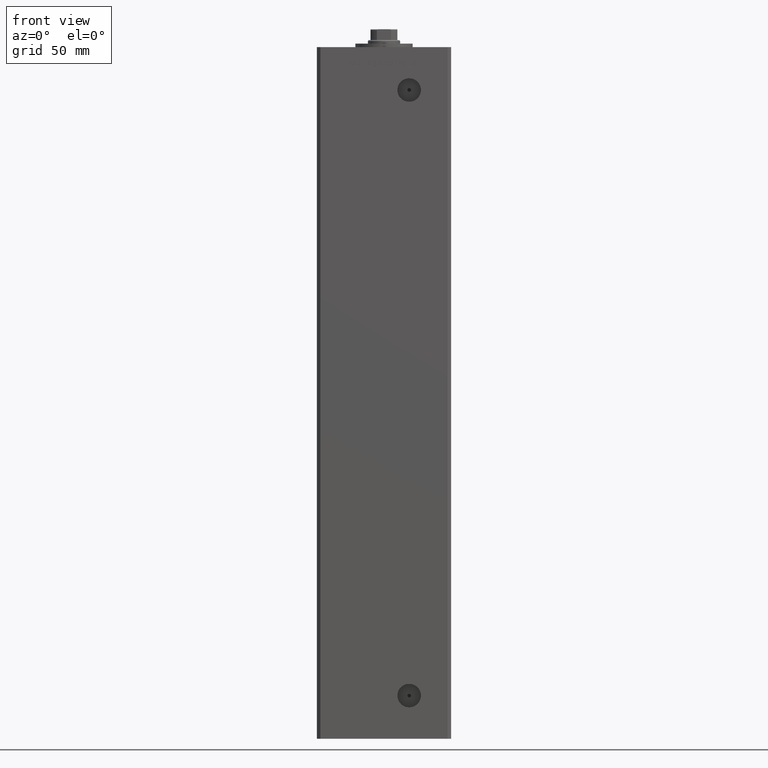
[diagram: clean part render]
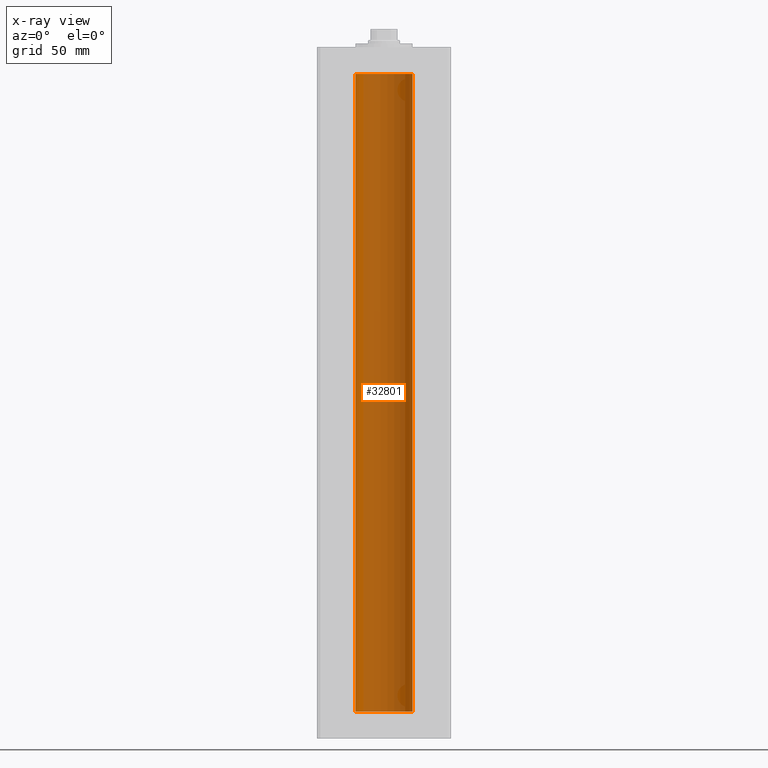
[diagram: x-ray — body ghosted, one internal face saturated and labeled with its STEP entity id]
A machine part, front view, then the same camera in x-ray: the body is ghosted and one INTERNAL B-rep face — a face not visible from any outside direction — is saturated and labeled: STEP entity #32801.
In plain terms, the highlighted cylindrical surface (edge-blend (fillet) strip) has radius 16 mm, axis along (-0, -0, -1).
Its self-contained STEP definition (entity closure, byte-faithful):
#1884 = ORIENTED_EDGE ( 'NONE', *, *, #45745, .F. ) ;
#2481 = ORIENTED_EDGE ( 'NONE', *, *, #6014, .F. ) ;
#2877 = AXIS2_PLACEMENT_3D ( 'NONE', #16129, #48060, #7414 ) ;
#3642 = ORIENTED_EDGE ( 'NONE', *, *, #31106, .T. ) ;
#6014 = EDGE_CURVE ( 'NONE', #29376, #15576, #21220, .T. ) ;
#6667 = CARTESIAN_POINT ( 'NONE',  ( -16.00000000000000000, 0.000000000000000000, 356.0000000000000000 ) ) ;
#6680 = DIRECTION ( 'NONE',  ( 1.000000000000000000, 0.000000000000000000, 0.000000000000000000 ) ) ;
#7414 = DIRECTION ( 'NONE',  ( -1.000000000000000000, 0.000000000000000000, 0.000000000000000000 ) ) ;
#7714 = CARTESIAN_POINT ( 'NONE',  ( 0.000000000000000000, 0.000000000000000000, 356.0000000000000000 ) ) ;
#10760 = CARTESIAN_POINT ( 'NONE',  ( -16.00000000000000000, 0.000000000000000000, 356.0000000000000000 ) ) ;
#10832 = CIRCLE ( 'NONE', #17586, 16.00000000000000000 ) ;
#12014 = EDGE_CURVE ( 'NONE', #29376, #48025, #10832, .T. ) ;
#13142 = VERTEX_POINT ( 'NONE', #29776 ) ;
#15576 = VERTEX_POINT ( 'NONE', #48432 ) ;
#16129 = CARTESIAN_POINT ( 'NONE',  ( 0.000000000000000000, 0.000000000000000000, 356.0000000000000000 ) ) ;
#17586 = AXIS2_PLACEMENT_3D ( 'NONE', #7714, #47067, #6680 ) ;
#18046 = CARTESIAN_POINT ( 'NONE',  ( 16.00000000000000000, 1.959434878635765131E-15, 356.0000000000000000 ) ) ;
#18164 = CARTESIAN_POINT ( 'NONE',  ( 0.000000000000000000, 0.000000000000000000, 0.000000000000000000 ) ) ;
#21220 = LINE ( 'NONE', #18046, #26691 ) ;
#22152 = VECTOR ( 'NONE', #41894, 1000.000000000000000 ) ;
#22366 = LINE ( 'NONE', #10760, #22152 ) ;
#24551 = CYLINDRICAL_SURFACE ( 'NONE', #2877, 16.00000000000000000 ) ;
#25950 = DIRECTION ( 'NONE',  ( -0.000000000000000000, -0.000000000000000000, -1.000000000000000000 ) ) ;
#26691 = VECTOR ( 'NONE', #25950, 1000.000000000000000 ) ;
#26860 = DIRECTION ( 'NONE',  ( -0.000000000000000000, 0.000000000000000000, 1.000000000000000000 ) ) ;
#29368 = AXIS2_PLACEMENT_3D ( 'NONE', #18164, #26860, #46654 ) ;
#29376 = VERTEX_POINT ( 'NONE', #37217 ) ;
#29776 = CARTESIAN_POINT ( 'NONE',  ( -16.00000000000000000, 0.000000000000000000, 0.000000000000000000 ) ) ;
#30113 = EDGE_LOOP ( 'NONE', ( #2481, #51601, #3642, #1884 ) ) ;
#31030 = CIRCLE ( 'NONE', #29368, 16.00000000000000000 ) ;
#31106 = EDGE_CURVE ( 'NONE', #48025, #13142, #22366, .T. ) ;
#32801 = ADVANCED_FACE ( 'NONE', ( #47794 ), #24551, .F. ) ;
#37217 = CARTESIAN_POINT ( 'NONE',  ( 16.00000000000000000, 1.959434878635765131E-15, 356.0000000000000000 ) ) ;
#41894 = DIRECTION ( 'NONE',  ( -0.000000000000000000, -0.000000000000000000, -1.000000000000000000 ) ) ;
#45745 = EDGE_CURVE ( 'NONE', #15576, #13142, #31030, .T. ) ;
#46654 = DIRECTION ( 'NONE',  ( 1.000000000000000000, 0.000000000000000000, 0.000000000000000000 ) ) ;
#47067 = DIRECTION ( 'NONE',  ( -0.000000000000000000, 0.000000000000000000, 1.000000000000000000 ) ) ;
#47794 = FACE_OUTER_BOUND ( 'NONE', #30113, .T. ) ;
#48025 = VERTEX_POINT ( 'NONE', #6667 ) ;
#48060 = DIRECTION ( 'NONE',  ( -0.000000000000000000, -0.000000000000000000, -1.000000000000000000 ) ) ;
#48432 = CARTESIAN_POINT ( 'NONE',  ( 16.00000000000000000, 1.959434878635765131E-15, 0.000000000000000000 ) ) ;
#51601 = ORIENTED_EDGE ( 'NONE', *, *, #12014, .T. ) ;